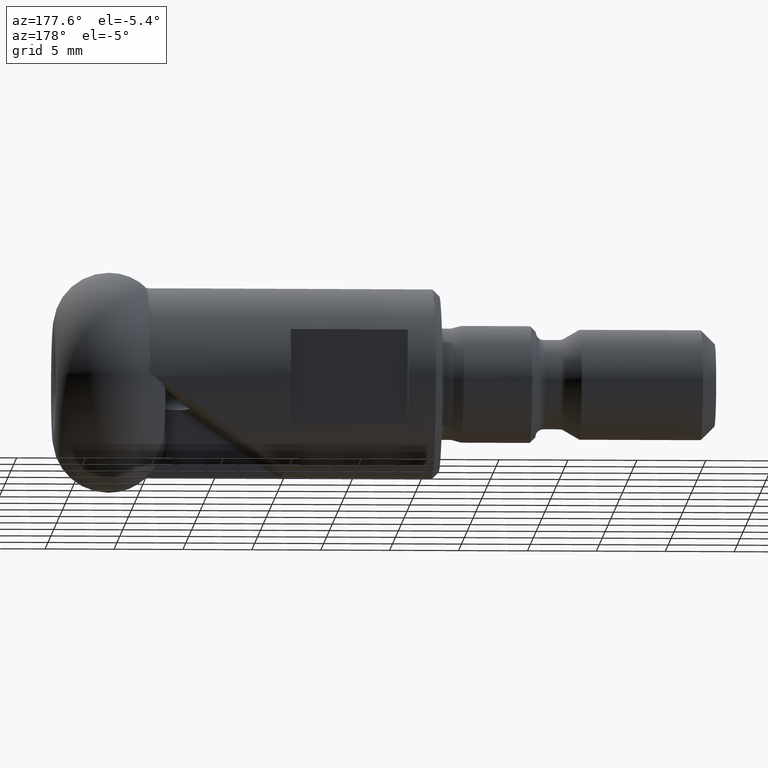
[diagram: clean part render]
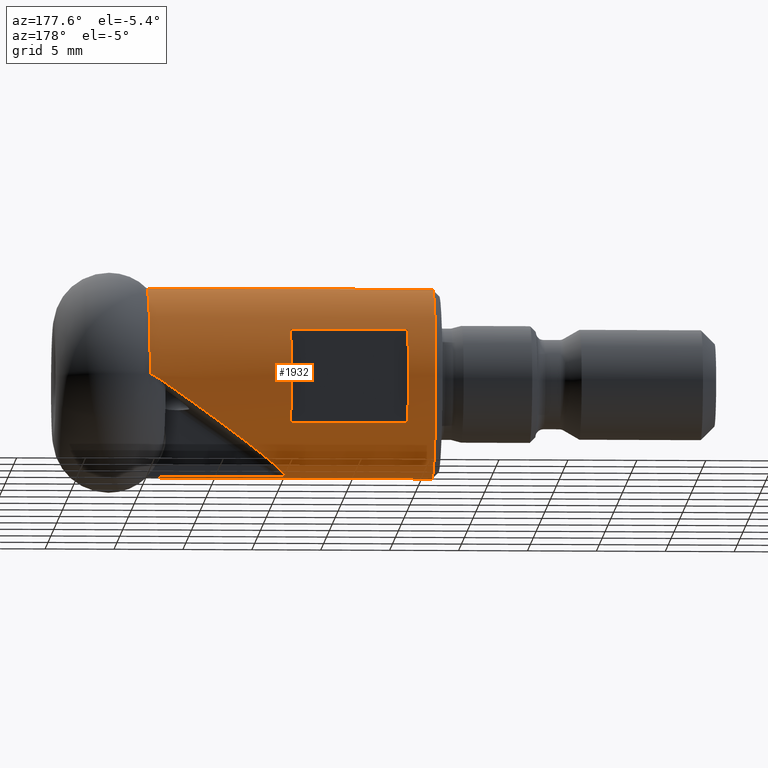
[diagram: same view with one face highlighted and labeled with its STEP entity id]
A machine part, auxiliary view. The second image highlights one B-rep face of the part: STEP entity #1932.
In plain terms, the highlighted cylindrical surface (partial cylindrical patch) has radius 6.9 mm, axis along (1, -0, -0).
Its self-contained STEP definition (entity closure, byte-faithful):
#27 = ORIENTED_EDGE ( 'NONE', *, *, #496, .F. ) ;
#94 = ORIENTED_EDGE ( 'NONE', *, *, #491, .F. ) ;
#116 = CARTESIAN_POINT ( 'NONE',  ( 0.0000000000000000000, 0.6999999999999996200, -6.864400920692205900 ) ) ;
#132 = CARTESIAN_POINT ( 'NONE',  ( -6.122553444624025000E-016, 6.000000000000000000, 3.407345007480163900 ) ) ;
#142 = DIRECTION ( 'NONE',  ( 1.000000000000000000, -0.0000000000000000000, -0.0000000000000000000 ) ) ;
#149 = CARTESIAN_POINT ( 'NONE',  ( -26.60000000000000100, 8.450062914116736700E-016, 6.899999999999999500 ) ) ;
#187 = CIRCLE ( 'NONE', #481, 6.899999999999999500 ) ;
#191 = EDGE_CURVE ( 'NONE', #772, #2180, #870, .T. ) ;
#209 = EDGE_CURVE ( 'NONE', #1393, #2180, #1854, .T. ) ;
#234 = DIRECTION ( 'NONE',  ( 0.0000000000000000000, 1.000000000000000000, 0.0000000000000000000 ) ) ;
#240 = CARTESIAN_POINT ( 'NONE',  ( 0.0000000000000000000, 0.0000000000000000000, -6.899999999999999500 ) ) ;
#276 = CARTESIAN_POINT ( 'NONE',  ( 0.0000000000000000000, 8.450062914116736700E-016, 6.899999999999999500 ) ) ;
#308 = DIRECTION ( 'NONE',  ( 1.000000000000000000, -0.0000000000000000000, -0.0000000000000000000 ) ) ;
#318 = VERTEX_POINT ( 'NONE', #149 ) ;
#338 = DIRECTION ( 'NONE',  ( 1.000000000000000000, -0.0000000000000000000, -0.0000000000000000000 ) ) ;
#366 = CARTESIAN_POINT ( 'NONE',  ( -5.874688244292426200, 6.899797278241654100, 0.05289157937764792100 ) ) ;
#409 = CARTESIAN_POINT ( 'NONE',  ( -5.874688244292426200, 0.0000000000000000000, -6.899999999999999500 ) ) ;
#423 = CIRCLE ( 'NONE', #806, 6.899999999999999500 ) ;
#440 = CARTESIAN_POINT ( 'NONE',  ( -26.60000000000000100, 0.0000000000000000000, -6.899999999999999500 ) ) ;
#443 = ORIENTED_EDGE ( 'NONE', *, *, #1085, .F. ) ;
#448 = DIRECTION ( 'NONE',  ( -1.000000000000000000, -2.127998823573266400E-016, -0.0000000000000000000 ) ) ;
#457 = EDGE_CURVE ( 'NONE', #557, #2689, #2601, .T. ) ;
#462 = CARTESIAN_POINT ( 'NONE',  ( -16.10000000000000100, 0.0000000000000000000, 0.0000000000000000000 ) ) ;
#470 =( BOUNDED_CURVE ( )  B_SPLINE_CURVE ( 3, ( #1000, #1847, #2517, #1247 ),
 .UNSPECIFIED., .F., .F. ) 
 B_SPLINE_CURVE_WITH_KNOTS ( ( 4, 4 ),
 ( 1.629373936024303800, 2.966790770216100300 ),
 .UNSPECIFIED. ) 
 CURVE ( )  GEOMETRIC_REPRESENTATION_ITEM ( )  RATIONAL_B_SPLINE_CURVE ( ( 1.000000000000000000, 0.8564153778414441700, 0.8564153778414441700, 1.000000000000000000 ) ) 
 REPRESENTATION_ITEM ( '' )  );
#475 = ORIENTED_EDGE ( 'NONE', *, *, #191, .T. ) ;
#481 = AXIS2_PLACEMENT_3D ( 'NONE', #1612, #2492, #1447 ) ;
#491 = EDGE_CURVE ( 'NONE', #1687, #1980, #1513, .T. ) ;
#496 = EDGE_CURVE ( 'NONE', #501, #1393, #907, .T. ) ;
#501 = VERTEX_POINT ( 'NONE', #440 ) ;
#503 = CYLINDRICAL_SURFACE ( 'NONE', #884, 6.899999999999999500 ) ;
#526 = EDGE_CURVE ( 'NONE', #1688, #1211, #761, .T. ) ;
#543 = ORIENTED_EDGE ( 'NONE', *, *, #2136, .T. ) ;
#554 = CARTESIAN_POINT ( 'NONE',  ( -6.658831417508981300, 6.888165274412172000, -0.4039543939385776800 ) ) ;
#557 = VERTEX_POINT ( 'NONE', #2385 ) ;
#584 = ORIENTED_EDGE ( 'NONE', *, *, #526, .T. ) ;
#628 = ORIENTED_EDGE ( 'NONE', *, *, #457, .F. ) ;
#664 = ORIENTED_EDGE ( 'NONE', *, *, #2285, .T. ) ;
#665 = CARTESIAN_POINT ( 'NONE',  ( -15.90570225634111900, 0.9885774839962864200, -6.828902598805047600 ) ) ;
#671 = EDGE_LOOP ( 'NONE', ( #443, #94, #923, #628 ) ) ;
#693 = DIRECTION ( 'NONE',  ( -1.000000000000000000, 0.0000000000000000000, 0.0000000000000000000 ) ) ;
#717 = CARTESIAN_POINT ( 'NONE',  ( -6.146768027720547400, 6.900809491290834400, -0.07915334958671958700 ) ) ;
#761 = B_SPLINE_CURVE_WITH_KNOTS ( 'NONE', 3,
 ( #1978, #717, #2412, #1363 ),
 .UNSPECIFIED., .F., .F.,
 ( 4, 4 ),
 ( 0.0005058331489945894700, 0.001412586838721201400 ),
 .UNSPECIFIED. ) ;
#772 = VERTEX_POINT ( 'NONE', #1406 ) ;
#775 = DIRECTION ( 'NONE',  ( 1.000000000000000000, -0.0000000000000000000, -0.0000000000000000000 ) ) ;
#806 = AXIS2_PLACEMENT_3D ( 'NONE', #1815, #775, #2066 ) ;
#807 = DIRECTION ( 'NONE',  ( 1.000000000000000000, -0.0000000000000000000, -0.0000000000000000000 ) ) ;
#870 = LINE ( 'NONE', #116, #1358 ) ;
#876 = AXIS2_PLACEMENT_3D ( 'NONE', #2042, #142, #1180 ) ;
#884 = AXIS2_PLACEMENT_3D ( 'NONE', #1446, #807, #1420 ) ;
#887 = VERTEX_POINT ( 'NONE', #2010 ) ;
#907 = LINE ( 'NONE', #240, #1453 ) ;
#923 = ORIENTED_EDGE ( 'NONE', *, *, #1844, .F. ) ;
#1000 = CARTESIAN_POINT ( 'NONE',  ( -6.658831417508981300, 6.888165274412172000, -0.4039543939385776800 ) ) ;
#1085 = EDGE_CURVE ( 'NONE', #1980, #557, #2275, .T. ) ;
#1086 = CARTESIAN_POINT ( 'NONE',  ( -15.93593938206476500, 1.199999999999998000, -6.794850991743675000 ) ) ;
#1096 = CARTESIAN_POINT ( 'NONE',  ( -15.82434641272565500, 0.8858186307457685000, -6.843252876865041600 ) ) ;
#1105 = DIRECTION ( 'NONE',  ( 1.000000000000000000, -0.0000000000000000000, -0.0000000000000000000 ) ) ;
#1153 = VECTOR ( 'NONE', #693, 1000.000000000000000 ) ;
#1180 = DIRECTION ( 'NONE',  ( 0.0000000000000000000, 0.0000000000000000000, -1.000000000000000000 ) ) ;
#1211 = VERTEX_POINT ( 'NONE', #554 ) ;
#1247 = CARTESIAN_POINT ( 'NONE',  ( -15.93593938206476500, 1.199999999999998000, -6.794850991743675000 ) ) ;
#1250 = LINE ( 'NONE', #132, #2589 ) ;
#1266 = ORIENTED_EDGE ( 'NONE', *, *, #1596, .T. ) ;
#1280 = CARTESIAN_POINT ( 'NONE',  ( -15.15553920845364600, 0.6999999999999996200, -6.864400920692205900 ) ) ;
#1288 = DIRECTION ( 'NONE',  ( 0.0000000000000000000, -1.000000000000000000, 1.776356839400250500E-015 ) ) ;
#1300 = CARTESIAN_POINT ( 'NONE',  ( -24.60000000000000100, 0.0000000000000000000, 0.0000000000000000000 ) ) ;
#1301 = CARTESIAN_POINT ( 'NONE',  ( -15.74810913295853300, 0.8364698350035665300, -6.849210000062095500 ) ) ;
#1309 = CARTESIAN_POINT ( 'NONE',  ( -6.122553444624025000E-016, 6.000000000000000000, -3.407345007480163900 ) ) ;
#1358 = VECTOR ( 'NONE', #338, 1000.000000000000000 ) ;
#1363 = CARTESIAN_POINT ( 'NONE',  ( -6.658831417508981300, 6.888165274412172000, -0.4039543939385776800 ) ) ;
#1384 = LINE ( 'NONE', #276, #2403 ) ;
#1393 = VERTEX_POINT ( 'NONE', #409 ) ;
#1406 = CARTESIAN_POINT ( 'NONE',  ( -15.15553920845364600, 0.6999999999999996200, -6.864400920692205900 ) ) ;
#1420 = DIRECTION ( 'NONE',  ( 0.0000000000000000000, 0.0000000000000000000, -1.000000000000000000 ) ) ;
#1446 = CARTESIAN_POINT ( 'NONE',  ( 0.0000000000000000000, 0.0000000000000000000, 0.0000000000000000000 ) ) ;
#1447 = DIRECTION ( 'NONE',  ( 0.0000000000000000000, 0.0000000000000000000, -1.000000000000000000 ) ) ;
#1453 = VECTOR ( 'NONE', #1105, 1000.000000000000000 ) ;
#1461 = CARTESIAN_POINT ( 'NONE',  ( -5.874688244292426200, 0.6999999999999995100, -6.864400920692205000 ) ) ;
#1501 = CARTESIAN_POINT ( 'NONE',  ( -15.92690385278814500, 1.028295974518667700, -6.823081181877354200 ) ) ;
#1513 = CIRCLE ( 'NONE', #2245, 6.899999999999999500 ) ;
#1596 = EDGE_CURVE ( 'NONE', #318, #2269, #1384, .T. ) ;
#1612 = CARTESIAN_POINT ( 'NONE',  ( -5.874688244292426200, 0.0000000000000000000, 0.0000000000000000000 ) ) ;
#1626 = CARTESIAN_POINT ( 'NONE',  ( -16.10000000000000100, 5.999999999999998200, -3.407345007480164800 ) ) ;
#1627 = CARTESIAN_POINT ( 'NONE',  ( -16.10000000000000100, 5.999999999999998200, 3.407345007480164800 ) ) ;
#1664 = EDGE_CURVE ( 'NONE', #1688, #2269, #187, .T. ) ;
#1687 = VERTEX_POINT ( 'NONE', #1627 ) ;
#1688 = VERTEX_POINT ( 'NONE', #366 ) ;
#1725 = EDGE_CURVE ( 'NONE', #1211, #887, #470, .T. ) ;
#1739 = DIRECTION ( 'NONE',  ( 1.000000000000000000, 2.127998823573266400E-016, 0.0000000000000000000 ) ) ;
#1815 = CARTESIAN_POINT ( 'NONE',  ( -26.60000000000000100, 0.0000000000000000000, 0.0000000000000000000 ) ) ;
#1844 = EDGE_CURVE ( 'NONE', #2689, #1687, #1250, .T. ) ;
#1847 = CARTESIAN_POINT ( 'NONE',  ( -11.48443351244627100, 6.693212479447541200, -3.728258059339823600 ) ) ;
#1854 = CIRCLE ( 'NONE', #876, 6.899999999999999500 ) ;
#1871 = ORIENTED_EDGE ( 'NONE', *, *, #209, .F. ) ;
#1920 = CARTESIAN_POINT ( 'NONE',  ( -15.50823468261233100, 0.7266049846897875100, -6.862031975698600100 ) ) ;
#1932 = ADVANCED_FACE ( 'NONE', ( #2234, #2365 ), #503, .T. ) ;
#1978 = CARTESIAN_POINT ( 'NONE',  ( -5.874688244292426200, 6.899797278241654100, 0.05289157937764792100 ) ) ;
#1980 = VERTEX_POINT ( 'NONE', #1626 ) ;
#2010 = CARTESIAN_POINT ( 'NONE',  ( -15.93593938206476500, 1.199999999999998000, -6.794850991743675000 ) ) ;
#2036 = CARTESIAN_POINT ( 'NONE',  ( -24.60000000000000100, 6.000000000000000000, 3.407345007480163900 ) ) ;
#2042 = CARTESIAN_POINT ( 'NONE',  ( -5.874688244292426200, 0.0000000000000000000, 0.0000000000000000000 ) ) ;
#2066 = DIRECTION ( 'NONE',  ( 0.0000000000000000000, 0.0000000000000000000, -1.000000000000000000 ) ) ;
#2117 = AXIS2_PLACEMENT_3D ( 'NONE', #1300, #1739, #1288 ) ;
#2136 = EDGE_CURVE ( 'NONE', #501, #318, #423, .T. ) ;
#2180 = VERTEX_POINT ( 'NONE', #1461 ) ;
#2234 = FACE_BOUND ( 'NONE', #671, .T. ) ;
#2245 = AXIS2_PLACEMENT_3D ( 'NONE', #462, #448, #234 ) ;
#2269 = VERTEX_POINT ( 'NONE', #2289 ) ;
#2275 = LINE ( 'NONE', #1309, #1153 ) ;
#2285 = EDGE_CURVE ( 'NONE', #887, #772, #2670, .T. ) ;
#2289 = CARTESIAN_POINT ( 'NONE',  ( -5.874688244292426200, 8.450062914116736700E-016, 6.899999999999999500 ) ) ;
#2346 = CARTESIAN_POINT ( 'NONE',  ( -15.94756570711875200, 1.112803664558660800, -6.809808912873029900 ) ) ;
#2365 = FACE_OUTER_BOUND ( 'NONE', #2383, .T. ) ;
#2372 = DIRECTION ( 'NONE',  ( 1.000000000000000000, -0.0000000000000000000, -0.0000000000000000000 ) ) ;
#2383 = EDGE_LOOP ( 'NONE', ( #543, #1266, #2651, #584, #2713, #664, #475, #1871, #27 ) ) ;
#2385 = CARTESIAN_POINT ( 'NONE',  ( -24.60000000000000100, 5.999999999999997300, -3.407345007480164800 ) ) ;
#2403 = VECTOR ( 'NONE', #2372, 1000.000000000000000 ) ;
#2412 = CARTESIAN_POINT ( 'NONE',  ( -6.408221764326790500, 6.898289824959811700, -0.2313121884130725500 ) ) ;
#2492 = DIRECTION ( 'NONE',  ( 1.000000000000000000, -0.0000000000000000000, -0.0000000000000000000 ) ) ;
#2517 = CARTESIAN_POINT ( 'NONE',  ( -15.09526232464342000, 4.479269175148587600, -6.215717907742302400 ) ) ;
#2543 = CARTESIAN_POINT ( 'NONE',  ( -15.33173575248730100, 0.6999999999999988500, -6.864400920692202300 ) ) ;
#2550 = CARTESIAN_POINT ( 'NONE',  ( -15.94685810318291900, 1.157408822711770700, -6.802372777402845300 ) ) ;
#2589 = VECTOR ( 'NONE', #308, 1000.000000000000000 ) ;
#2601 = CIRCLE ( 'NONE', #2117, 6.899999999999999500 ) ;
#2651 = ORIENTED_EDGE ( 'NONE', *, *, #1664, .F. ) ;
#2670 = B_SPLINE_CURVE_WITH_KNOTS ( 'NONE', 3,
 ( #1086, #2550, #2346, #1501, #665, #1096, #1301, #1920, #2543, #1280 ),
 .UNSPECIFIED., .F., .F.,
 ( 4, 2, 2, 2, 4 ),
 ( 1.301042606982605300E-018, 0.0001317470814583943800, 0.0002634941629167874500, 0.0005269883258335741400, 0.001053976651667133100 ),
 .UNSPECIFIED. ) ;
#2689 = VERTEX_POINT ( 'NONE', #2036 ) ;
#2713 = ORIENTED_EDGE ( 'NONE', *, *, #1725, .T. ) ;